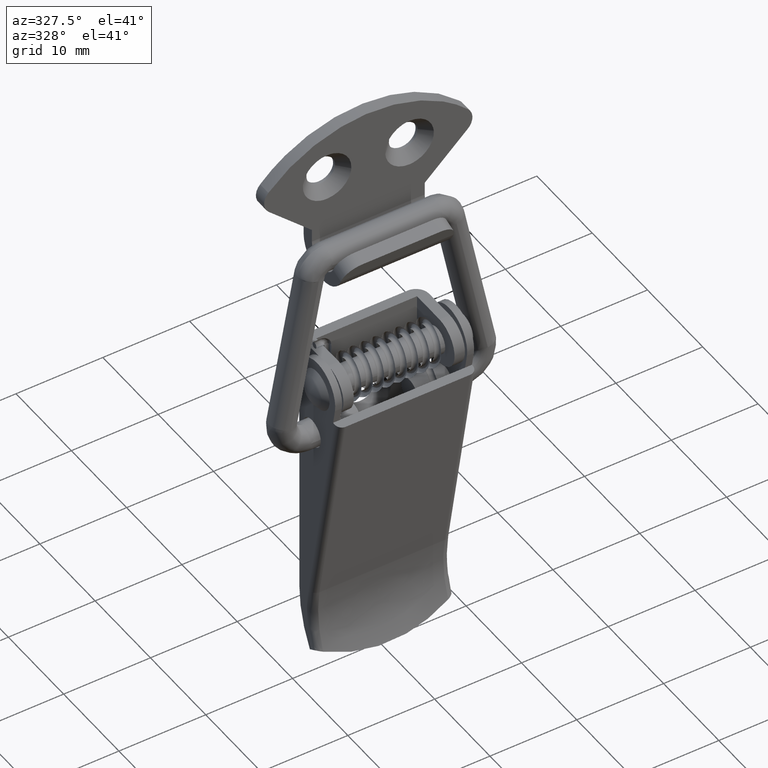
[diagram: clean part render]
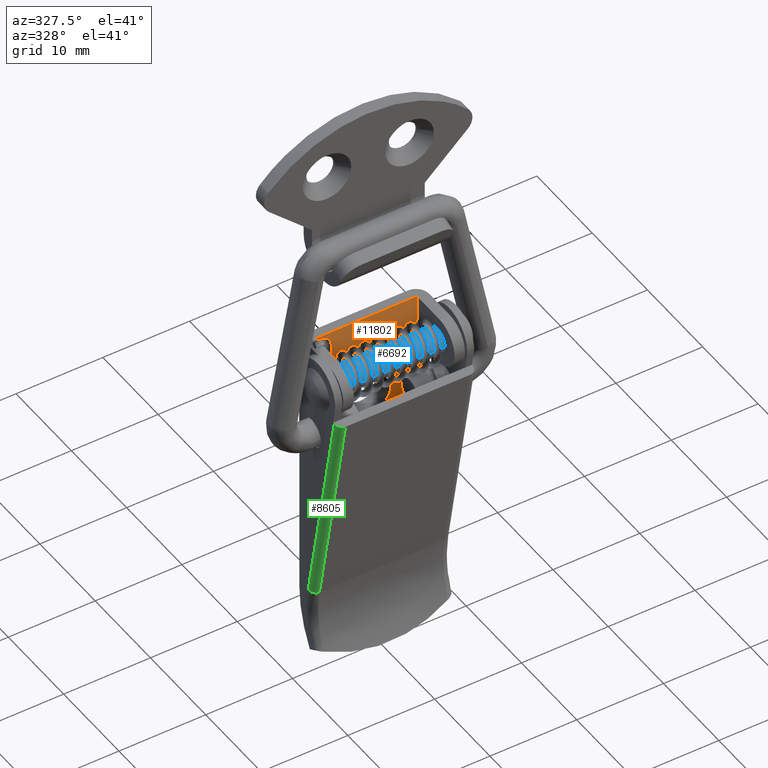
[diagram: same view with three faces highlighted in distinct colors, each labeled with its STEP entity id]
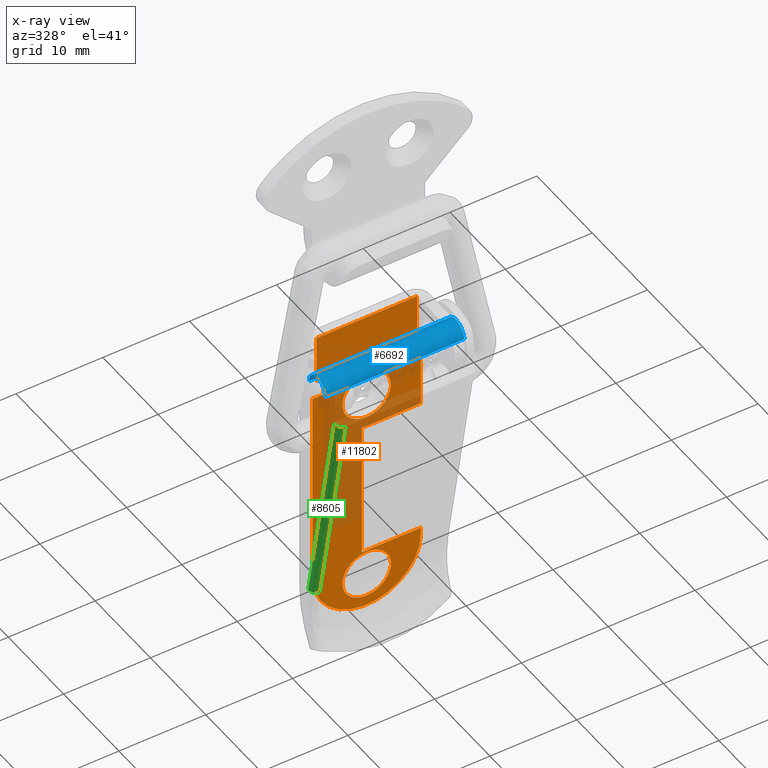
[diagram: x-ray of the same camera — body ghosted, the three highlighted faces saturated]
A machine part, auxiliary view with three faces highlighted in distinct colors.
The next image is the same camera in x-ray (body ghosted, the three faces saturated) — at least one of them is partly hidden behind the body in this view.
Their STEP definitions:

[orange] entity #11802 — the highlighted face is a freeform B-spline surface patch.
#10150=CARTESIAN_POINT('',(-2.794777435617208,2.299999999932649,-45.329064088789067));
#10151=VERTEX_POINT('',#10150);
#10157=CARTESIAN_POINT('',(1.408297E-016,2.299999999999900,-48.299999999999997));
#10158=VERTEX_POINT('',#10157);
#10159=CARTESIAN_POINT('',(-2.794777435617208,2.299999999932649,-45.329064088789067));
#10160=CARTESIAN_POINT('',(-2.800000000066162,2.299999999933617,-45.414452262504575));
#10161=CARTESIAN_POINT('',(-2.800000000065136,2.299999999934643,-45.499999999996021));
#10162=CARTESIAN_POINT('',(-2.800000000031572,2.299999999968267,-48.299999999998057));
#10163=CARTESIAN_POINT('',(1.408297E-016,2.299999999999900,-48.299999999999997));
#10171=(BOUNDED_CURVE()B_SPLINE_CURVE(2,(#10159,#10160,#10161,#10162,#10163),.UNSPECIFIED.,.F.,.U.)B_SPLINE_CURVE_WITH_KNOTS((3,2,3),(0.239332962210529,0.250000000000000,0.500000000000000),.UNSPECIFIED.)CURVE()GEOMETRIC_REPRESENTATION_ITEM()RATIONAL_B_SPLINE_CURVE((0.976072041605821,0.987502787866548,1.0,0.707106781186547,1.0))REPRESENTATION_ITEM(''));
#10172=EDGE_CURVE('',#10151,#10158,#10171,.T.);
#10174=CARTESIAN_POINT('',(2.794777435617208,2.299999999932649,-45.670935911210918));
#10175=VERTEX_POINT('',#10174);
#10176=CARTESIAN_POINT('',(1.408297E-016,2.299999999999900,-48.299999999999997));
#10177=CARTESIAN_POINT('',(2.633976986888697,2.299999999966274,-48.300000000002044));
#10178=CARTESIAN_POINT('',(2.794777435617208,2.299999999932649,-45.670935911210918));
#10186=(BOUNDED_CURVE()B_SPLINE_CURVE(2,(#10176,#10177,#10178),.UNSPECIFIED.,.F.,.U.)B_SPLINE_CURVE_WITH_KNOTS((3,3),(0.500000000000000,0.739332962210530),.UNSPECIFIED.)CURVE()GEOMETRIC_REPRESENTATION_ITEM()RATIONAL_B_SPLINE_CURVE((1.0,0.719603993319998,0.976072041605824))REPRESENTATION_ITEM(''));
#10187=EDGE_CURVE('',#10158,#10175,#10186,.T.);
#10219=CARTESIAN_POINT('',(1.408297E-016,2.299999999999900,-42.700000000000003));
#10220=VERTEX_POINT('',#10219);
#10221=CARTESIAN_POINT('',(2.794777435617208,2.299999999932649,-45.670935911210918));
#10222=CARTESIAN_POINT('',(2.800000000066161,2.299999999933616,-45.585547737495411));
#10223=CARTESIAN_POINT('',(2.800000000065135,2.299999999934643,-45.500000000003979));
#10224=CARTESIAN_POINT('',(2.800000000031572,2.299999999968267,-42.700000000001928));
#10225=CARTESIAN_POINT('',(1.408297E-016,2.299999999999900,-42.700000000000003));
#10233=(BOUNDED_CURVE()B_SPLINE_CURVE(2,(#10221,#10222,#10223,#10224,#10225),.UNSPECIFIED.,.F.,.U.)B_SPLINE_CURVE_WITH_KNOTS((3,2,3),(0.739332962210530,0.750000000000000,1.0),.UNSPECIFIED.)CURVE()GEOMETRIC_REPRESENTATION_ITEM()RATIONAL_B_SPLINE_CURVE((0.976072041605823,0.987502787866549,1.0,0.707106781186547,1.0))REPRESENTATION_ITEM(''));
#10234=EDGE_CURVE('',#10175,#10220,#10233,.T.);
#10236=CARTESIAN_POINT('',(1.408297E-016,2.299999999999900,-42.700000000000003));
#10237=CARTESIAN_POINT('',(-2.633976986888681,2.299999999966274,-42.699999999997942));
#10238=CARTESIAN_POINT('',(-2.794777435617207,2.299999999932649,-45.329064088789067));
#10246=(BOUNDED_CURVE()B_SPLINE_CURVE(2,(#10236,#10237,#10238),.UNSPECIFIED.,.F.,.U.)B_SPLINE_CURVE_WITH_KNOTS((3,3),(0.0,0.239332962210529),.UNSPECIFIED.)CURVE()GEOMETRIC_REPRESENTATION_ITEM()RATIONAL_B_SPLINE_CURVE((1.0,0.719603993319999,0.976072041605821))REPRESENTATION_ITEM(''));
#10247=EDGE_CURVE('',#10220,#10151,#10246,.T.);
#10454=CARTESIAN_POINT('',(-2.794777435617208,2.299999999932649,-22.329064088789071));
#10455=VERTEX_POINT('',#10454);
#10461=CARTESIAN_POINT('',(1.408297E-016,2.299999999999900,-25.300000000000001));
#10462=VERTEX_POINT('',#10461);
#10463=CARTESIAN_POINT('',(-2.794777435617208,2.299999999932649,-22.329064088789071));
#10464=CARTESIAN_POINT('',(-2.800000000066161,2.299999999933616,-22.414452262504586));
#10465=CARTESIAN_POINT('',(-2.800000000065136,2.299999999934644,-22.499999999996021));
#10466=CARTESIAN_POINT('',(-2.800000000031572,2.299999999968269,-25.299999999998072));
#10467=CARTESIAN_POINT('',(1.408297E-016,2.299999999999900,-25.300000000000001));
#10475=(BOUNDED_CURVE()B_SPLINE_CURVE(2,(#10463,#10464,#10465,#10466,#10467),.UNSPECIFIED.,.F.,.U.)B_SPLINE_CURVE_WITH_KNOTS((3,2,3),(0.239332962210529,0.250000000000000,0.500000000000000),.UNSPECIFIED.)CURVE()GEOMETRIC_REPRESENTATION_ITEM()RATIONAL_B_SPLINE_CURVE((0.976072041605822,0.987502787866549,1.0,0.707106781186547,1.0))REPRESENTATION_ITEM(''));
#10476=EDGE_CURVE('',#10455,#10462,#10475,.T.);
#10478=CARTESIAN_POINT('',(2.794777435617208,2.299999999932649,-22.670935911210929));
#10479=VERTEX_POINT('',#10478);
#10480=CARTESIAN_POINT('',(1.408297E-016,2.299999999999900,-25.300000000000001));
#10481=CARTESIAN_POINT('',(2.633976986888687,2.299999999966275,-25.300000000002051));
#10482=CARTESIAN_POINT('',(2.794777435617208,2.299999999932649,-22.670935911210925));
#10490=(BOUNDED_CURVE()B_SPLINE_CURVE(2,(#10480,#10481,#10482),.UNSPECIFIED.,.F.,.U.)B_SPLINE_CURVE_WITH_KNOTS((3,3),(0.500000000000000,0.739332962210529),.UNSPECIFIED.)CURVE()GEOMETRIC_REPRESENTATION_ITEM()RATIONAL_B_SPLINE_CURVE((1.0,0.719603993319999,0.976072041605822))REPRESENTATION_ITEM(''));
#10491=EDGE_CURVE('',#10462,#10479,#10490,.T.);
#10523=CARTESIAN_POINT('',(1.408297E-016,2.299999999999900,-19.699999999999999));
#10524=VERTEX_POINT('',#10523);
#10525=CARTESIAN_POINT('',(2.794777435617208,2.299999999932649,-22.670935911210933));
#10526=CARTESIAN_POINT('',(2.800000000066162,2.299999999933616,-22.585547737495421));
#10527=CARTESIAN_POINT('',(2.800000000065136,2.299999999934643,-22.500000000003979));
#10528=CARTESIAN_POINT('',(2.800000000031572,2.299999999968267,-19.700000000001928));
#10529=CARTESIAN_POINT('',(1.408297E-016,2.299999999999900,-19.699999999999999));
#10537=(BOUNDED_CURVE()B_SPLINE_CURVE(2,(#10525,#10526,#10527,#10528,#10529),.UNSPECIFIED.,.F.,.U.)B_SPLINE_CURVE_WITH_KNOTS((3,2,3),(0.739332962210529,0.750000000000000,1.0),.UNSPECIFIED.)CURVE()GEOMETRIC_REPRESENTATION_ITEM()RATIONAL_B_SPLINE_CURVE((0.976072041605822,0.987502787866549,1.0,0.707106781186547,1.0))REPRESENTATION_ITEM(''));
#10538=EDGE_CURVE('',#10479,#10524,#10537,.T.);
#10540=CARTESIAN_POINT('',(1.408297E-016,2.299999999999900,-19.699999999999999));
#10541=CARTESIAN_POINT('',(-2.633976986888691,2.299999999966274,-19.699999999997946));
#10542=CARTESIAN_POINT('',(-2.794777435617208,2.299999999932649,-22.329064088789078));
#10550=(BOUNDED_CURVE()B_SPLINE_CURVE(2,(#10540,#10541,#10542),.UNSPECIFIED.,.F.,.U.)B_SPLINE_CURVE_WITH_KNOTS((3,3),(0.0,0.239332962210530),.UNSPECIFIED.)CURVE()GEOMETRIC_REPRESENTATION_ITEM()RATIONAL_B_SPLINE_CURVE((1.0,0.719603993319998,0.976072041605823))REPRESENTATION_ITEM(''));
#10551=EDGE_CURVE('',#10524,#10455,#10550,.T.);
#10964=CARTESIAN_POINT('',(5.799999999999829,2.299999999999999,-18.001000000000001));
#10965=VERTEX_POINT('',#10964);
#10971=CARTESIAN_POINT('',(4.999999999999780,2.299999999999999,-18.001000000000001));
#10972=VERTEX_POINT('',#10971);
#10973=CARTESIAN_POINT('',(4.999999999999780,2.299999999999999,-18.001000000000001));
#10974=CARTESIAN_POINT('',(5.799999999999829,2.299999999999999,-18.001000000000001));
#10975=QUASI_UNIFORM_CURVE('',1,(#10973,#10974),.UNSPECIFIED.,.F.,.U.);
#10976=EDGE_CURVE('',#10972,#10965,#10975,.T.);
#11156=CARTESIAN_POINT('',(-0.550000000000162,2.299999999999900,-30.701000000000001));
#11157=VERTEX_POINT('',#11156);
#11165=CARTESIAN_POINT('',(-0.550000000000182,2.299999999999970,-37.801000000000002));
#11166=VERTEX_POINT('',#11165);
#11167=CARTESIAN_POINT('',(-0.550000000000182,2.299999999999970,-37.801000000000002));
#11168=CARTESIAN_POINT('',(-0.550000000000162,2.299999999999900,-30.701000000000001));
#11169=QUASI_UNIFORM_CURVE('',1,(#11167,#11168),.UNSPECIFIED.,.F.,.U.);
#11170=EDGE_CURVE('',#11166,#11157,#11169,.T.);
#11220=CARTESIAN_POINT('',(4.999999999999830,2.299999999999970,-20.100999999999999));
#11221=VERTEX_POINT('',#11220);
#11222=CARTESIAN_POINT('',(4.999999999999780,2.299999999999999,-18.001000000000001));
#11223=CARTESIAN_POINT('',(4.999999999999830,2.299999999999970,-20.100999999999999));
#11224=QUASI_UNIFORM_CURVE('',1,(#11222,#11223),.UNSPECIFIED.,.F.,.U.);
#11225=EDGE_CURVE('',#10972,#11221,#11224,.T.);
#11248=CARTESIAN_POINT('',(-5.0,2.299999999999971,-20.100999999999999));
#11249=VERTEX_POINT('',#11248);
#11250=CARTESIAN_POINT('',(-5.0,2.299999999999971,-18.001000000000001));
#11251=VERTEX_POINT('',#11250);
#11252=CARTESIAN_POINT('',(-5.0,2.299999999999971,-20.100999999999999));
#11253=CARTESIAN_POINT('',(-5.0,2.299999999999971,-18.001000000000001));
#11254=QUASI_UNIFORM_CURVE('',1,(#11252,#11253),.UNSPECIFIED.,.F.,.U.);
#11255=EDGE_CURVE('',#11249,#11251,#11254,.T.);
#11284=CARTESIAN_POINT('',(-6.250000000000000,2.299999999999971,-20.100999999999999));
#11285=VERTEX_POINT('',#11284);
#11286=CARTESIAN_POINT('',(-6.250000000000000,2.299999999999971,-20.100999999999999));
#11287=CARTESIAN_POINT('',(-5.0,2.299999999999971,-20.100999999999999));
#11288=QUASI_UNIFORM_CURVE('',1,(#11286,#11287),.UNSPECIFIED.,.F.,.U.);
#11289=EDGE_CURVE('',#11285,#11249,#11288,.T.);
#11312=CARTESIAN_POINT('',(-6.250000000000000,2.299999999999971,-43.250999999999998));
#11313=VERTEX_POINT('',#11312);
#11314=CARTESIAN_POINT('',(-6.250000000000000,2.299999999999971,-43.250999999999998));
#11315=CARTESIAN_POINT('',(-6.250000000000000,2.299999999999971,-20.100999999999999));
#11316=QUASI_UNIFORM_CURVE('',1,(#11314,#11315),.UNSPECIFIED.,.F.,.U.);
#11317=EDGE_CURVE('',#11313,#11285,#11316,.T.);
#11353=CARTESIAN_POINT('',(6.250000000000000,2.299999999999970,-43.250999999999998));
#11354=VERTEX_POINT('',#11353);
#11355=CARTESIAN_POINT('',(6.250000000000000,2.299999999999970,-43.250999999999998));
#11356=CARTESIAN_POINT('',(6.250141820184681,2.299999999999971,-43.762333266991213));
#11357=CARTESIAN_POINT('',(6.155313579987895,2.299999999999969,-44.529231548212522));
#11358=CARTESIAN_POINT('',(5.799485609583454,2.299999999999969,-45.652500369334142));
#11359=CARTESIAN_POINT('',(5.372130720915470,2.299999999999974,-46.501532757917992));
#11360=CARTESIAN_POINT('',(4.721170483322752,2.299999999999976,-47.390585902058177));
#11361=CARTESIAN_POINT('',(3.967313235441255,2.299999999999951,-48.126176208439063));
#11362=CARTESIAN_POINT('',(2.985838437792940,2.300000000000012,-48.781985893995383));
#11363=CARTESIAN_POINT('',(2.088577823750493,2.299999999999946,-49.166594368155579));
#11364=CARTESIAN_POINT('',(1.073746247440962,2.300000000000017,-49.434070788041360));
#11365=CARTESIAN_POINT('',(0.076702966446510,2.299999999999906,-49.538476539262518));
#11366=CARTESIAN_POINT('',(-0.945921893542339,2.300000000000001,-49.450352169839483));
#11367=CARTESIAN_POINT('',(-1.869012861178407,2.299999999999989,-49.237107448651876));
#11368=CARTESIAN_POINT('',(-2.778802268406640,2.299999999999898,-48.886204915916053));
#11369=CARTESIAN_POINT('',(-3.853963131826413,2.300000000000127,-48.232854818172022));
#11370=CARTESIAN_POINT('',(-4.712150090903347,2.299999999999903,-47.415835606807612));
#11371=CARTESIAN_POINT('',(-5.381808931433090,2.299999999999994,-46.477061871405120));
#11372=CARTESIAN_POINT('',(-5.854903210448166,2.299999999999959,-45.537323645891391));
#11373=CARTESIAN_POINT('',(-6.176844849101860,2.299999999999987,-44.427024828230302));
#11374=CARTESIAN_POINT('',(-6.250034158851613,2.299999999999952,-43.634482548508117));
#11375=CARTESIAN_POINT('',(-6.250000000000000,2.299999999999971,-43.250999999999998));
#11376=B_SPLINE_CURVE_WITH_KNOTS('',3,(#11355,#11356,#11357,#11358,#11359,#11360,#11361,#11362,#11363,#11364,#11365,#11366,#11367,#11368,#11369,#11370,#11371,#11372,#11373,#11374,#11375),.UNSPECIFIED.,.F.,.U.,(4,1,1,1,1,1,1,1,1,1,1,1,1,1,1,1,1,1,4),(0.000000010121585,1.533952939676102,2.300954723988191,3.528166421340178,4.371868674561029,5.599075888139099,6.672877582378403,7.900061564712424,8.513688539381864,9.817539270919186,10.891289877792200,11.581592067716921,12.655419429156190,13.805911129516360,15.339907641363309,16.183618361170851,17.257408215544540,18.484627199374891,19.635077286014010),.UNSPECIFIED.);
#11377=EDGE_CURVE('',#11354,#11313,#11376,.T.);
#11418=CARTESIAN_POINT('',(6.250000000000000,2.299999999999970,-42.500999999999998));
#11419=VERTEX_POINT('',#11418);
#11420=CARTESIAN_POINT('',(6.250000000000000,2.299999999999970,-42.500999999999998));
#11421=CARTESIAN_POINT('',(6.250000000000000,2.299999999999970,-43.250999999999998));
#11422=QUASI_UNIFORM_CURVE('',1,(#11420,#11421),.UNSPECIFIED.,.F.,.U.);
#11423=EDGE_CURVE('',#11419,#11354,#11422,.T.);
#11446=CARTESIAN_POINT('',(-0.550000000000182,2.299999999999970,-42.500999999999998));
#11447=VERTEX_POINT('',#11446);
#11448=CARTESIAN_POINT('',(-0.550000000000182,2.299999999999970,-42.500999999999998));
#11449=CARTESIAN_POINT('',(6.250000000000000,2.299999999999970,-42.500999999999998));
#11450=QUASI_UNIFORM_CURVE('',1,(#11448,#11449),.UNSPECIFIED.,.F.,.U.);
#11451=EDGE_CURVE('',#11447,#11419,#11450,.T.);
#11474=CARTESIAN_POINT('',(-0.550000000000182,2.299999999999970,-37.801000000000002));
#11475=CARTESIAN_POINT('',(-0.550000000000182,2.299999999999970,-42.500999999999998));
#11476=QUASI_UNIFORM_CURVE('',1,(#11474,#11475),.UNSPECIFIED.,.F.,.U.);
#11477=EDGE_CURVE('',#11166,#11447,#11476,.T.);
#11548=CARTESIAN_POINT('',(-0.550000000000182,2.299999999999970,-26.501000000000001));
#11549=VERTEX_POINT('',#11548);
#11550=CARTESIAN_POINT('',(-0.550000000000182,2.299999999999970,-26.501000000000001));
#11551=CARTESIAN_POINT('',(-0.550000000000162,2.299999999999900,-30.701000000000001));
#11552=QUASI_UNIFORM_CURVE('',1,(#11550,#11551),.UNSPECIFIED.,.F.,.U.);
#11553=EDGE_CURVE('',#11549,#11157,#11552,.T.);
#11576=CARTESIAN_POINT('',(6.250000000000000,2.299999999999970,-26.501000000000001));
#11577=VERTEX_POINT('',#11576);
#11578=CARTESIAN_POINT('',(6.250000000000000,2.299999999999970,-26.501000000000001));
#11579=CARTESIAN_POINT('',(-0.550000000000182,2.299999999999970,-26.501000000000001));
#11580=QUASI_UNIFORM_CURVE('',1,(#11578,#11579),.UNSPECIFIED.,.F.,.U.);
#11581=EDGE_CURVE('',#11577,#11549,#11580,.T.);
#11604=CARTESIAN_POINT('',(6.250000000000000,2.299999999999970,-20.100999999999999));
#11605=VERTEX_POINT('',#11604);
#11606=CARTESIAN_POINT('',(6.250000000000000,2.299999999999970,-20.100999999999999));
#11607=CARTESIAN_POINT('',(6.250000000000000,2.299999999999970,-26.501000000000001));
#11608=QUASI_UNIFORM_CURVE('',1,(#11606,#11607),.UNSPECIFIED.,.F.,.U.);
#11609=EDGE_CURVE('',#11605,#11577,#11608,.T.);
#11632=CARTESIAN_POINT('',(4.999999999999830,2.299999999999970,-20.100999999999999));
#11633=CARTESIAN_POINT('',(6.250000000000000,2.299999999999970,-20.100999999999999));
#11634=QUASI_UNIFORM_CURVE('',1,(#11632,#11633),.UNSPECIFIED.,.F.,.U.);
#11635=EDGE_CURVE('',#11221,#11605,#11634,.T.);
#11654=CARTESIAN_POINT('',(5.799999999999829,2.299999999999999,-12.500999999999999));
#11655=VERTEX_POINT('',#11654);
#11661=CARTESIAN_POINT('',(5.799999999999829,2.299999999999999,-12.500999999999999));
#11662=CARTESIAN_POINT('',(5.799999999999829,2.299999999999999,-18.001000000000001));
#11663=QUASI_UNIFORM_CURVE('',1,(#11661,#11662),.UNSPECIFIED.,.F.,.U.);
#11664=EDGE_CURVE('',#11655,#10965,#11663,.T.);
#11729=CARTESIAN_POINT('',(-5.800000000000000,2.300000000000000,-18.001000000000001));
#11730=VERTEX_POINT('',#11729);
#11736=CARTESIAN_POINT('',(-5.800000000000000,2.300000000000000,-12.500999999999999));
#11737=VERTEX_POINT('',#11736);
#11738=CARTESIAN_POINT('',(-5.800000000000000,2.300000000000000,-12.500999999999999));
#11739=CARTESIAN_POINT('',(-5.800000000000000,2.300000000000000,-18.001000000000001));
#11740=QUASI_UNIFORM_CURVE('',1,(#11738,#11739),.UNSPECIFIED.,.F.,.U.);
#11741=EDGE_CURVE('',#11737,#11730,#11740,.T.);
#11757=CARTESIAN_POINT('',(6.874374975772574,2.299999999999999,-51.349149928286678));
#11758=CARTESIAN_POINT('',(6.874374975772574,2.299999999999999,-10.652849079295850));
#11759=CARTESIAN_POINT('',(-6.874375311048701,2.300000000000000,-51.349149928286678));
#11760=CARTESIAN_POINT('',(-6.874375311048701,2.300000000000000,-10.652849079295850));
#11761=B_SPLINE_SURFACE_WITH_KNOTS('',1,1,((#11757,#11759),(#11758,#11760)),.UNSPECIFIED.,.F.,.F.,.U.,(2,2),(2,2),(0.0,40.696300848990830),(0.0,13.748750286821281),.UNSPECIFIED.);
#11762=ORIENTED_EDGE('',*,*,#11170,.T.);
#11763=ORIENTED_EDGE('',*,*,#11553,.F.);
#11764=ORIENTED_EDGE('',*,*,#11581,.F.);
#11765=ORIENTED_EDGE('',*,*,#11609,.F.);
#11766=ORIENTED_EDGE('',*,*,#11635,.F.);
#11767=ORIENTED_EDGE('',*,*,#11225,.F.);
#11768=ORIENTED_EDGE('',*,*,#10976,.T.);
#11769=ORIENTED_EDGE('',*,*,#11664,.F.);
#11770=CARTESIAN_POINT('',(-5.800000000000000,2.300000000000000,-12.500999999999999));
#11771=CARTESIAN_POINT('',(5.799999999999829,2.299999999999999,-12.500999999999999));
#11772=QUASI_UNIFORM_CURVE('',1,(#11770,#11771),.UNSPECIFIED.,.F.,.U.);
#11773=EDGE_CURVE('',#11737,#11655,#11772,.T.);
#11774=ORIENTED_EDGE('',*,*,#11773,.F.);
#11775=ORIENTED_EDGE('',*,*,#11741,.T.);
#11776=CARTESIAN_POINT('',(-5.800000000000000,2.300000000000000,-18.001000000000001));
#11777=CARTESIAN_POINT('',(-5.0,2.299999999999971,-18.001000000000001));
#11778=QUASI_UNIFORM_CURVE('',1,(#11776,#11777),.UNSPECIFIED.,.F.,.U.);
#11779=EDGE_CURVE('',#11730,#11251,#11778,.T.);
#11780=ORIENTED_EDGE('',*,*,#11779,.T.);
#11781=ORIENTED_EDGE('',*,*,#11255,.F.);
#11782=ORIENTED_EDGE('',*,*,#11289,.F.);
#11783=ORIENTED_EDGE('',*,*,#11317,.F.);
#11784=ORIENTED_EDGE('',*,*,#11377,.F.);
#11785=ORIENTED_EDGE('',*,*,#11423,.F.);
#11786=ORIENTED_EDGE('',*,*,#11451,.F.);
#11787=ORIENTED_EDGE('',*,*,#11477,.F.);
#11788=EDGE_LOOP('',(#11762,#11763,#11764,#11765,#11766,#11767,#11768,#11769,#11774,#11775,#11780,#11781,#11782,#11783,#11784,#11785,#11786,#11787));
#11789=FACE_OUTER_BOUND('',#11788,.T.);
#11790=ORIENTED_EDGE('',*,*,#10491,.F.);
#11791=ORIENTED_EDGE('',*,*,#10476,.F.);
#11792=ORIENTED_EDGE('',*,*,#10551,.F.);
#11793=ORIENTED_EDGE('',*,*,#10538,.F.);
#11794=EDGE_LOOP('',(#11790,#11791,#11792,#11793));
#11795=FACE_BOUND('',#11794,.T.);
#11796=ORIENTED_EDGE('',*,*,#10187,.F.);
#11797=ORIENTED_EDGE('',*,*,#10172,.F.);
#11798=ORIENTED_EDGE('',*,*,#10247,.F.);
#11799=ORIENTED_EDGE('',*,*,#10234,.F.);
#11800=EDGE_LOOP('',(#11796,#11797,#11798,#11799));
#11801=FACE_BOUND('',#11800,.T.);
#11802=ADVANCED_FACE('',(#11789,#11795,#11801),#11761,.T.);

[blue] entity #6692 — the highlighted face is a freeform B-spline surface patch.
#6559=CARTESIAN_POINT('',(8.0,-1.300000000000012,-13.901000000000000));
#6560=VERTEX_POINT('',#6559);
#6561=CARTESIAN_POINT('',(7.999999999999949,-2.797202197609412,-15.309427190315111));
#6562=VERTEX_POINT('',#6561);
#6563=CARTESIAN_POINT('',(8.0,-1.300000000000012,-13.901000000000000));
#6564=CARTESIAN_POINT('',(8.0,-2.711059099997292,-13.900999999999998));
#6565=CARTESIAN_POINT('',(8.000000000000002,-2.797202197609411,-15.309427190315109));
#6573=(BOUNDED_CURVE()B_SPLINE_CURVE(2,(#6563,#6564,#6565),.UNSPECIFIED.,.F.,.U.)B_SPLINE_CURVE_WITH_KNOTS((3,3),(0.500000000000000,0.739332962197875),.UNSPECIFIED.)CURVE()GEOMETRIC_REPRESENTATION_ITEM()RATIONAL_B_SPLINE_CURVE((1.0,0.719603993334824,0.976072041578701))REPRESENTATION_ITEM(''));
#6574=EDGE_CURVE('',#6560,#6562,#6573,.T.);
#6593=CARTESIAN_POINT('',(7.999999999999949,0.197202197609387,-15.492572809684891));
#6594=VERTEX_POINT('',#6593);
#6608=CARTESIAN_POINT('',(8.0,0.197202197609387,-15.492572809684891));
#6609=CARTESIAN_POINT('',(8.0,0.199999999999988,-15.446829145139725));
#6610=CARTESIAN_POINT('',(8.0,0.199999999999988,-15.401000000000000));
#6611=CARTESIAN_POINT('',(8.0,0.199999999999988,-13.900999999999996));
#6612=CARTESIAN_POINT('',(8.0,-1.300000000000012,-13.901000000000000));
#6620=(BOUNDED_CURVE()B_SPLINE_CURVE(2,(#6608,#6609,#6610,#6611,#6612),.UNSPECIFIED.,.F.,.U.)B_SPLINE_CURVE_WITH_KNOTS((3,2,3),(0.239332962197875,0.250000000000000,0.500000000000000),.UNSPECIFIED.)CURVE()GEOMETRIC_REPRESENTATION_ITEM()RATIONAL_B_SPLINE_CURVE((0.976072041578701,0.987502787851723,1.0,0.707106781186548,1.0))REPRESENTATION_ITEM(''));
#6621=EDGE_CURVE('',#6594,#6560,#6620,.T.);
#6626=CARTESIAN_POINT('',(-8.400000000000174,0.197202197632789,-15.492572809302290));
#6627=CARTESIAN_POINT('',(-8.400000000000174,0.288775006935074,-13.995370611669484));
#6628=CARTESIAN_POINT('',(-8.400000000000174,-1.208427190697726,-13.903797802367199));
#6629=CARTESIAN_POINT('',(-8.400000000000174,-2.705629388330526,-13.812224993064916));
#6630=CARTESIAN_POINT('',(-8.400000000000174,-2.797202197632811,-15.309427190697720));
#6631=CARTESIAN_POINT('',(8.410000000000004,0.197202197632788,-15.492572809302290));
#6632=CARTESIAN_POINT('',(8.410000000000004,0.288775006935073,-13.995370611669484));
#6633=CARTESIAN_POINT('',(8.410000000000004,-1.208427190697727,-13.903797802367199));
#6634=CARTESIAN_POINT('',(8.410000000000004,-2.705629388330526,-13.812224993064916));
#6635=CARTESIAN_POINT('',(8.410000000000004,-2.797202197632812,-15.309427190697720));
#6643=(BOUNDED_SURFACE()B_SPLINE_SURFACE(2,1,((#6626,#6631),(#6627,#6632),(#6628,#6633),(#6629,#6634),(#6630,#6635)),.UNSPECIFIED.,.F.,.F.,.U.)B_SPLINE_SURFACE_WITH_KNOTS((3,2,3),(2,2),(3.141592653589793,4.712388980384690,6.283185307179586),(0.0,16.810000000000180),.UNSPECIFIED.)GEOMETRIC_REPRESENTATION_ITEM()RATIONAL_B_SPLINE_SURFACE(((1.0,1.0),(0.707106781186548,0.707106781186548),(1.0,1.0),(0.707106781186548,0.707106781186548),(1.0,1.0)))REPRESENTATION_ITEM('')SURFACE());
#6644=ORIENTED_EDGE('',*,*,#6621,.F.);
#6645=CARTESIAN_POINT('',(-8.000000000000146,0.197202197609388,-15.492572809684891));
#6646=VERTEX_POINT('',#6645);
#6647=CARTESIAN_POINT('',(-8.000000000000171,0.197202197609388,-15.492572809684891));
#6648=CARTESIAN_POINT('',(8.0,0.197202197609387,-15.492572809684891));
#6649=QUASI_UNIFORM_CURVE('',1,(#6647,#6648),.UNSPECIFIED.,.F.,.U.);
#6650=EDGE_CURVE('',#6646,#6594,#6649,.T.);
#6651=ORIENTED_EDGE('',*,*,#6650,.F.);
#6652=CARTESIAN_POINT('',(-8.000000000000171,-1.300000000000011,-13.901000000000000));
#6653=VERTEX_POINT('',#6652);
#6654=CARTESIAN_POINT('',(-8.000000000000171,0.197202197609388,-15.492572809684884));
#6655=CARTESIAN_POINT('',(-8.000000000000171,0.199999999999989,-15.446829145139725));
#6656=CARTESIAN_POINT('',(-8.000000000000171,0.199999999999989,-15.401000000000000));
#6657=CARTESIAN_POINT('',(-8.000000000000171,0.199999999999989,-13.900999999999996));
#6658=CARTESIAN_POINT('',(-8.000000000000171,-1.300000000000011,-13.901000000000000));
#6666=(BOUNDED_CURVE()B_SPLINE_CURVE(2,(#6654,#6655,#6656,#6657,#6658),.UNSPECIFIED.,.F.,.U.)B_SPLINE_CURVE_WITH_KNOTS((3,2,3),(0.239332962197875,0.250000000000000,0.500000000000000),.UNSPECIFIED.)CURVE()GEOMETRIC_REPRESENTATION_ITEM()RATIONAL_B_SPLINE_CURVE((0.976072041578701,0.987502787851723,1.0,0.707106781186548,1.0))REPRESENTATION_ITEM(''));
#6667=EDGE_CURVE('',#6646,#6653,#6666,.T.);
#6668=ORIENTED_EDGE('',*,*,#6667,.T.);
#6669=CARTESIAN_POINT('',(-8.000000000000146,-2.797202197609411,-15.309427190315111));
#6670=VERTEX_POINT('',#6669);
#6671=CARTESIAN_POINT('',(-8.000000000000171,-1.300000000000011,-13.901000000000000));
#6672=CARTESIAN_POINT('',(-8.000000000000172,-2.711059099997292,-13.900999999999998));
#6673=CARTESIAN_POINT('',(-8.000000000000171,-2.797202197609411,-15.309427190315109));
#6681=(BOUNDED_CURVE()B_SPLINE_CURVE(2,(#6671,#6672,#6673),.UNSPECIFIED.,.F.,.U.)B_SPLINE_CURVE_WITH_KNOTS((3,3),(0.500000000000000,0.739332962197875),.UNSPECIFIED.)CURVE()GEOMETRIC_REPRESENTATION_ITEM()RATIONAL_B_SPLINE_CURVE((1.0,0.719603993334824,0.976072041578701))REPRESENTATION_ITEM(''));
#6682=EDGE_CURVE('',#6653,#6670,#6681,.T.);
#6683=ORIENTED_EDGE('',*,*,#6682,.T.);
#6684=CARTESIAN_POINT('',(-8.000000000000171,-2.797202197609411,-15.309427190315111));
#6685=CARTESIAN_POINT('',(8.0,-2.797202197609412,-15.309427190315111));
#6686=QUASI_UNIFORM_CURVE('',1,(#6684,#6685),.UNSPECIFIED.,.F.,.U.);
#6687=EDGE_CURVE('',#6670,#6562,#6686,.T.);
#6688=ORIENTED_EDGE('',*,*,#6687,.T.);
#6689=ORIENTED_EDGE('',*,*,#6574,.F.);
#6690=EDGE_LOOP('',(#6644,#6651,#6668,#6683,#6688,#6689));
#6691=FACE_OUTER_BOUND('',#6690,.T.);
#6692=ADVANCED_FACE('',(#6691),#6643,.T.);

[green] entity #8605 — the highlighted face is a freeform B-spline surface patch.
#8200=CARTESIAN_POINT('',(-8.000000000000171,0.317894153549923,-42.355432692690052));
#8201=VERTEX_POINT('',#8200);
#8215=CARTESIAN_POINT('',(-8.000000000000171,-4.390094177018004,-17.617494009259850));
#8216=VERTEX_POINT('',#8215);
#8217=CARTESIAN_POINT('',(-8.000000000000171,0.317894153549923,-42.355432692690052));
#8218=CARTESIAN_POINT('',(-8.000000000000171,-4.390094177018004,-17.617494009259850));
#8219=QUASI_UNIFORM_CURVE('',1,(#8217,#8218),.UNSPECIFIED.,.F.,.U.);
#8220=EDGE_CURVE('',#8201,#8216,#8219,.T.);
#8278=CARTESIAN_POINT('',(-7.200000000000210,-5.176000000000100,-17.766999999999999));
#8279=VERTEX_POINT('',#8278);
#8280=CARTESIAN_POINT('',(-8.000000000000210,-4.390094177018004,-17.617494009259850));
#8281=CARTESIAN_POINT('',(-8.000000000000210,-5.175999973813710,-17.766999995018459));
#8282=CARTESIAN_POINT('',(-7.200000026656217,-5.176000000000099,-17.767000000000010));
#8290=(BOUNDED_CURVE()B_SPLINE_CURVE(2,(#8280,#8281,#8282),.UNSPECIFIED.,.F.,.U.)CURVE()GEOMETRIC_REPRESENTATION_ITEM()QUASI_UNIFORM_CURVE()RATIONAL_B_SPLINE_CURVE((1.0,0.707106792966944,1.0))REPRESENTATION_ITEM(''));
#8291=EDGE_CURVE('',#8216,#8279,#8290,.T.);
#8549=CARTESIAN_POINT('',(-7.200000000000210,-0.468000044574560,-42.504999765785250));
#8550=VERTEX_POINT('',#8549);
#8564=CARTESIAN_POINT('',(-7.200000000000210,-0.468000044574558,-42.504999765785257));
#8565=CARTESIAN_POINT('',(-8.000000000000210,-0.468000047317540,-42.504999751372367));
#8566=CARTESIAN_POINT('',(-8.000000000000210,0.317894153549924,-42.355432692690023));
#8574=(BOUNDED_CURVE()B_SPLINE_CURVE(2,(#8564,#8565,#8566),.UNSPECIFIED.,.F.,.U.)CURVE()GEOMETRIC_REPRESENTATION_ITEM()QUASI_UNIFORM_CURVE()RATIONAL_B_SPLINE_CURVE((1.0,0.707106781186548,1.0))REPRESENTATION_ITEM(''));
#8575=EDGE_CURVE('',#8550,#8201,#8574,.T.);
#8581=CARTESIAN_POINT('',(-7.999969538451547,-4.500947664376441,-16.997677744926040));
#8582=CARTESIAN_POINT('',(-7.999969538451547,0.445394788792518,-42.988038748854173));
#8583=CARTESIAN_POINT('',(-8.007326218188144,-5.329075820040785,-17.155282537426150));
#8584=CARTESIAN_POINT('',(-8.007326218188144,-0.382733366871827,-43.145643541354275));
#8585=CARTESIAN_POINT('',(-7.165104490107943,-5.292952001746412,-17.148407651156859));
#8586=CARTESIAN_POINT('',(-7.165104490107943,-0.346609548577451,-43.138768655084981));
#8594=(BOUNDED_SURFACE()B_SPLINE_SURFACE(1,2,((#8581,#8583,#8585),(#8582,#8584,#8586)),.UNSPECIFIED.,.F.,.F.,.U.)B_SPLINE_SURFACE_WITH_KNOTS((2,2),(3,3),(0.0,26.456854854243911),(0.0,1.0),.UNSPECIFIED.)GEOMETRIC_REPRESENTATION_ITEM()RATIONAL_B_SPLINE_SURFACE(((1.0,0.688354575693754,1.0),(1.0,0.688354575693754,1.0)))REPRESENTATION_ITEM('')SURFACE());
#8595=ORIENTED_EDGE('',*,*,#8291,.F.);
#8596=ORIENTED_EDGE('',*,*,#8220,.F.);
#8597=ORIENTED_EDGE('',*,*,#8575,.F.);
#8598=CARTESIAN_POINT('',(-7.200000000000210,-5.176000000000100,-17.766999999999999));
#8599=CARTESIAN_POINT('',(-7.200000000000210,-0.468000044574560,-42.504999765785250));
#8600=QUASI_UNIFORM_CURVE('',1,(#8598,#8599),.UNSPECIFIED.,.F.,.U.);
#8601=EDGE_CURVE('',#8279,#8550,#8600,.T.);
#8602=ORIENTED_EDGE('',*,*,#8601,.F.);
#8603=EDGE_LOOP('',(#8595,#8596,#8597,#8602));
#8604=FACE_OUTER_BOUND('',#8603,.T.);
#8605=ADVANCED_FACE('',(#8604),#8594,.T.);